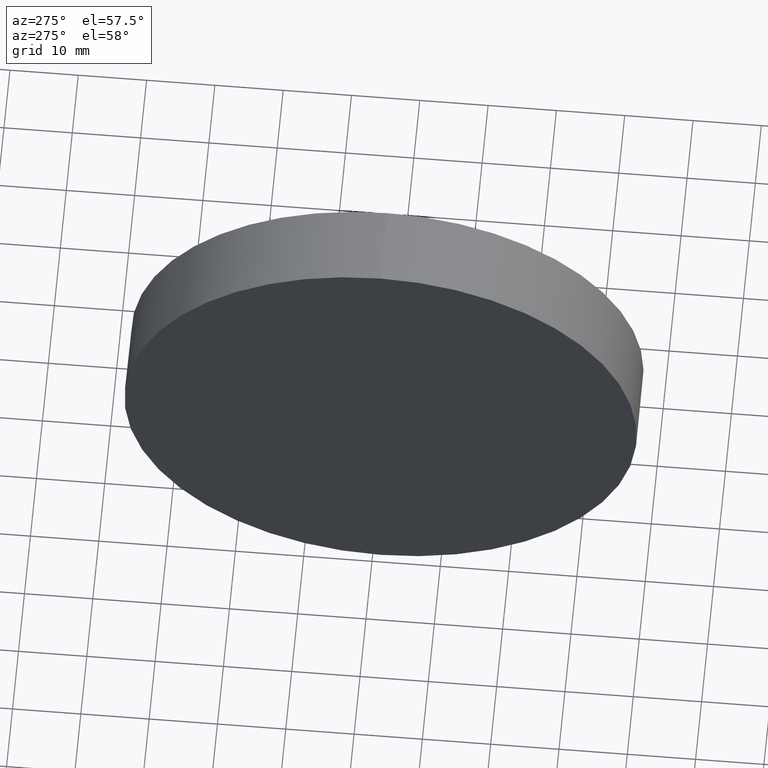
[diagram: clean part render]
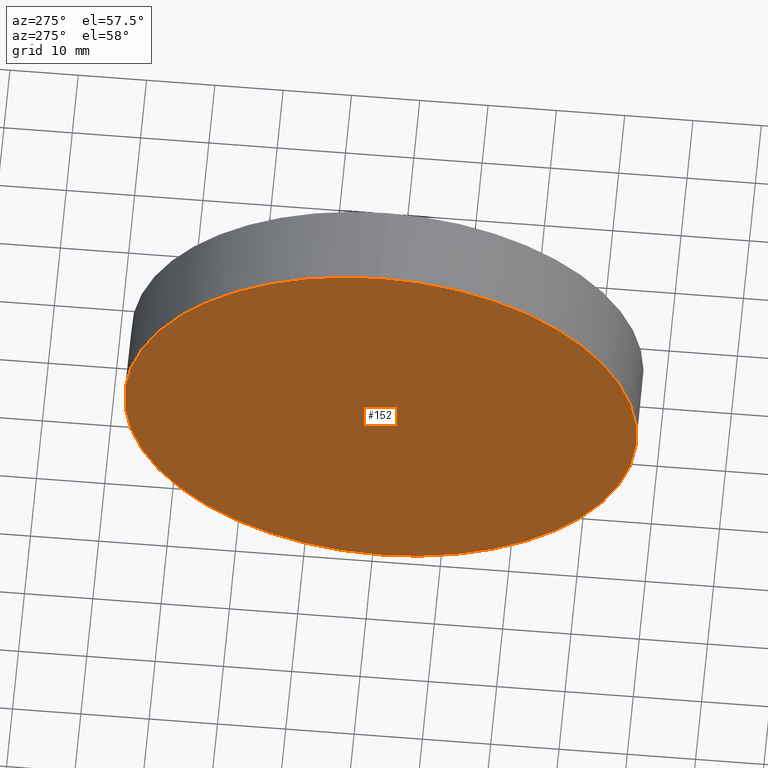
[diagram: same view with one face highlighted and labeled with its STEP entity id]
A machine part, auxiliary view. The second image highlights one B-rep face of the part: STEP entity #152.
In plain terms, the highlighted planar face has unit normal (1, 0, 0).
Its self-contained STEP definition (entity closure, byte-faithful):
#10 = CIRCLE ( 'NONE', #68, 37.50000000000000700 ) ;
#17 = CARTESIAN_POINT ( 'NONE',  ( 230.1996119052661200, 138.7560422467448700, 0.0000000000000000000 ) ) ;
#36 = VERTEX_POINT ( 'NONE', #45 ) ;
#45 = CARTESIAN_POINT ( 'NONE',  ( 230.1996119052661200, 138.7560422467448700, 37.50000000000000700 ) ) ;
#46 = DIRECTION ( 'NONE',  ( -1.000000000000000000, -0.0000000000000000000, -0.0000000000000000000 ) ) ;
#50 = CARTESIAN_POINT ( 'NONE',  ( 230.1996119052661200, 138.7560422467448700, 0.0000000000000000000 ) ) ;
#55 = EDGE_CURVE ( 'NONE', #36, #136, #174, .T. ) ;
#61 = ORIENTED_EDGE ( 'NONE', *, *, #163, .T. ) ;
#62 = DIRECTION ( 'NONE',  ( 0.0000000000000000000, 0.0000000000000000000, 1.000000000000000000 ) ) ;
#64 = CARTESIAN_POINT ( 'NONE',  ( 230.1996119052661200, 138.7560422467448700, -37.50000000000000700 ) ) ;
#65 = DIRECTION ( 'NONE',  ( 1.000000000000000000, 0.0000000000000000000, 0.0000000000000000000 ) ) ;
#67 = ORIENTED_EDGE ( 'NONE', *, *, #55, .T. ) ;
#68 = AXIS2_PLACEMENT_3D ( 'NONE', #76, #182, #110 ) ;
#76 = CARTESIAN_POINT ( 'NONE',  ( 230.1996119052661200, 138.7560422467448700, 0.0000000000000000000 ) ) ;
#81 = EDGE_LOOP ( 'NONE', ( #67, #61 ) ) ;
#96 = DIRECTION ( 'NONE',  ( 0.0000000000000000000, 0.0000000000000000000, -1.000000000000000000 ) ) ;
#108 = FACE_OUTER_BOUND ( 'NONE', #81, .T. ) ;
#109 = AXIS2_PLACEMENT_3D ( 'NONE', #17, #65, #96 ) ;
#110 = DIRECTION ( 'NONE',  ( 0.0000000000000000000, 0.0000000000000000000, 1.000000000000000000 ) ) ;
#114 = AXIS2_PLACEMENT_3D ( 'NONE', #50, #46, #62 ) ;
#136 = VERTEX_POINT ( 'NONE', #64 ) ;
#147 = PLANE ( 'NONE',  #109 ) ;
#152 = ADVANCED_FACE ( 'NONE', ( #108 ), #147, .F. ) ;
#163 = EDGE_CURVE ( 'NONE', #136, #36, #10, .T. ) ;
#174 = CIRCLE ( 'NONE', #114, 37.50000000000000700 ) ;
#182 = DIRECTION ( 'NONE',  ( -1.000000000000000000, -0.0000000000000000000, -0.0000000000000000000 ) ) ;